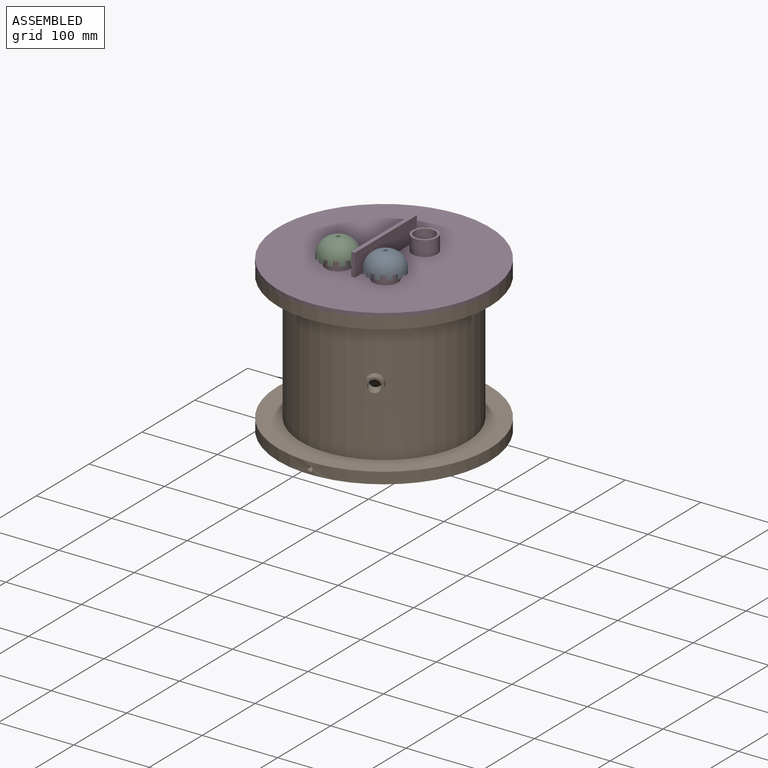
[diagram: assembled view]
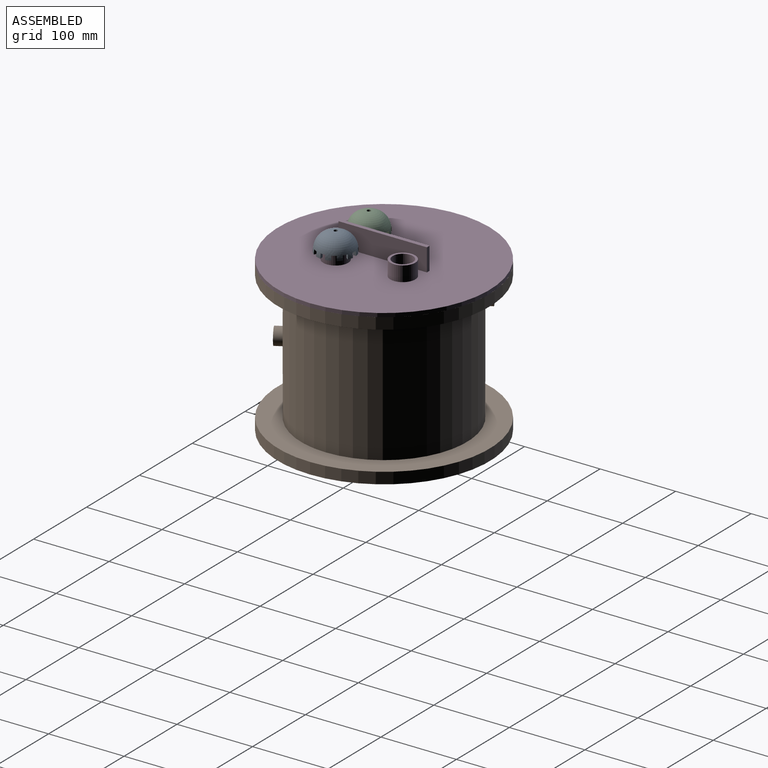
[diagram: assembled view, second angle]
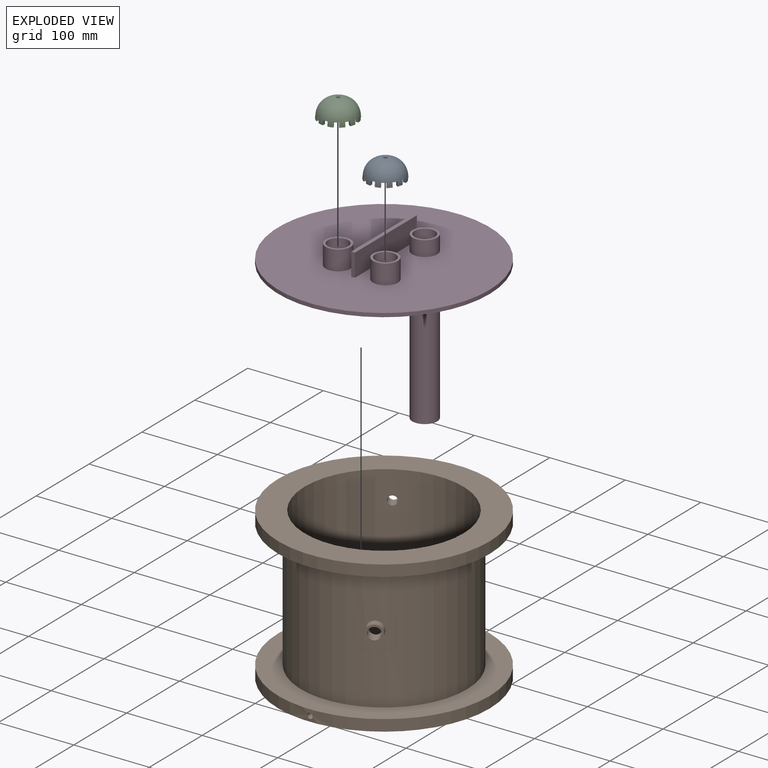
[diagram: exploded view]
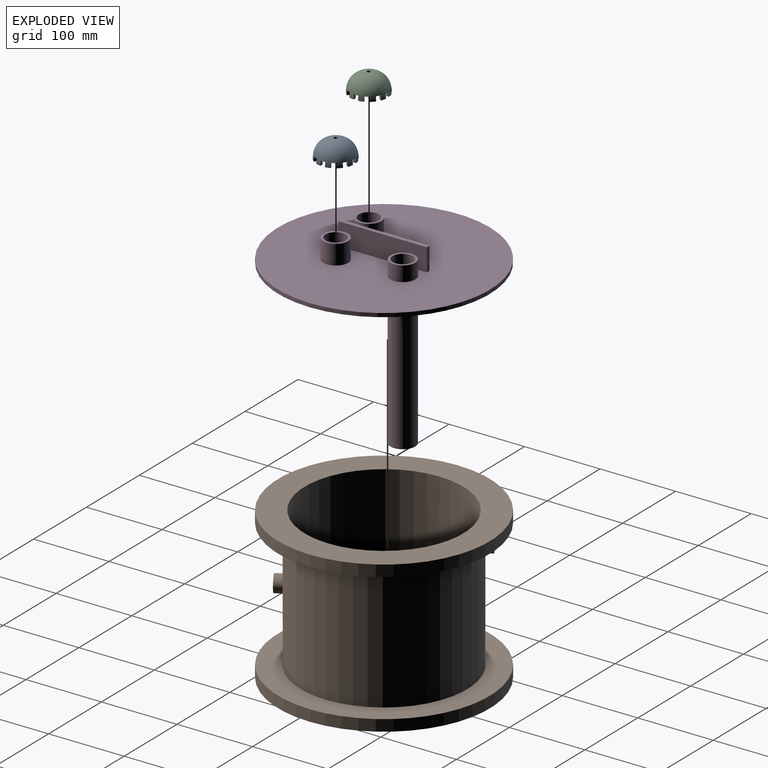
[diagram: exploded view, second angle]
ASSEMBLY  parts=4 mates=3
PART A: 51 faces, bbox 50x50x24.9 mm
  f0: revolved ~42x42mm, area 2457.2mm2, adj f2,f3,f4,f5,f6,f7,f8,f9
  f1: revolved ~50x50mm, area 3641.9mm2, adj f2,f3,f4,f5,f6,f7,f8,f9
  f2: plane 6.82x5.29mm, normal (0,0,-1), area 24.1mm2, adj f0,f1,f44,f48
  f3: plane 7.03x6.98mm, normal (0,0,-1), area 24.1mm2, adj f0,f1,f41,f45
  f4: plane 6.8x5.35mm, normal (0,0,-1), area 24.1mm2, adj f0,f1,f38,f42
  f5: plane 6.82x5.29mm, normal (0,0,-1), area 24.1mm2, adj f0,f1,f14,f39
  f6: plane 7.03x6.98mm, normal (0,0,-1), area 24.1mm2, adj f0,f1,f32,f36
  f7: plane 6.8x5.35mm, normal (0,0,-1), area 24.1mm2, adj f0,f1,f33,f47
  f8: plane 6.82x5.29mm, normal (0,0,-1), area 24.1mm2, adj f0,f1,f30,f35
  f9: plane 6.8x5.35mm, normal (0,0,-1), area 24.1mm2, adj f0,f1,f27,f29
  f10: plane 7.03x6.98mm, normal (0,0,-1), area 24.1mm2, adj f0,f1,f24,f26
  f11: plane 6.82x5.29mm, normal (0,0,-1), area 24.1mm2, adj f0,f1,f21,f23
  f12: plane 6.8x5.35mm, normal (0,0,-1), area 24.1mm2, adj f0,f1,f18,f20
  f13: plane 7.03x6.98mm, normal (0,0,-1), area 24.1mm2, adj f0,f1,f15,f17
  f14: plane 6x4mm, normal (0.5,0.87,0), area 24.4mm2, adj f0,f1,f5,f16
  f15: plane 6x3.99mm, normal (-0.5,-0.87,0), area 24.3mm2, adj f0,f1,f13,f16
  f16: plane 7.27x6.53mm, normal (0,0,-1), area 24.5mm2, adj f0,f1,f14,f15
  f17: plane 6x4mm, normal (0.87,0.5,0), area 24.4mm2, adj f0,f1,f13,f19
  f18: plane 6x3.99mm, normal (-0.87,-0.5,0), area 24.3mm2, adj f0,f1,f12,f19
  f19: plane 7.23x6.58mm, normal (0,0,-1), area 24.5mm2, adj f0,f1,f17,f18
  f20: plane 6x4.62mm, normal (1,0,0), area 24.4mm2, adj f0,f1,f12,f22
  f21: plane 6x4.61mm, normal (-1,0,0), area 24.3mm2, adj f0,f1,f11,f22
  f22: plane 6x4.31mm, normal (0,0,-1), area 24.5mm2, adj f0,f1,f20,f21
  f23: plane 6x4mm, normal (0.87,-0.5,0), area 24.4mm2, adj f0,f1,f11,f25
  f24: plane 6x3.99mm, normal (-0.87,0.5,0), area 24.3mm2, adj f0,f1,f10,f25
  f25: plane 7.27x6.53mm, normal (0,0,-1), area 24.5mm2, adj f0,f1,f23,f24
  f26: plane 6x4mm, normal (0.5,-0.87,0), area 24.4mm2, adj f0,f1,f10,f28
  f27: plane 6x3.99mm, normal (-0.5,0.87,0), area 24.3mm2, adj f0,f1,f9,f28
  f28: plane 7.23x6.58mm, normal (0,0,-1), area 24.5mm2, adj f0,f1,f26,f27
  f29: plane 6x4.62mm, normal (0,-1,0), area 24.4mm2, adj f0,f1,f9,f31
  f30: plane 6x4.61mm, normal (0,1,0), area 24.3mm2, adj f0,f1,f8,f31
  f31: plane 6x4.31mm, normal (0,0,-1), area 24.5mm2, adj f0,f1,f29,f30
  f32: plane 6x4mm, normal (-0.87,-0.5,0), area 24.4mm2, adj f0,f1,f6,f34
  f33: plane 6x3.99mm, normal (0.87,0.5,0), area 24.3mm2, adj f0,f1,f7,f34
  f34: plane 7.23x6.58mm, normal (0,0,-1), area 24.5mm2, adj f0,f1,f32,f33
  f35: plane 6x4mm, normal (-0.5,-0.87,0), area 24.4mm2, adj f0,f1,f8,f37
  f36: plane 6x3.99mm, normal (0.5,0.87,0), area 24.3mm2, adj f0,f1,f6,f37
  f37: plane 7.27x6.53mm, normal (0,0,-1), area 24.5mm2, adj f0,f1,f35,f36
  f38: plane 6x4.62mm, normal (0,1,0), area 24.4mm2, adj f0,f1,f4,f40
  f39: plane 6x4.61mm, normal (0,-1,0), area 24.3mm2, adj f0,f1,f5,f40
  f40: plane 6x4.31mm, normal (0,0,-1), area 24.5mm2, adj f0,f1,f38,f39
  f41: plane 6x4mm, normal (-0.5,0.87,0), area 24.4mm2, adj f0,f1,f3,f43
  f42: plane 6x3.99mm, normal (0.5,-0.87,0), area 24.3mm2, adj f0,f1,f4,f43
  f43: plane 7.23x6.58mm, normal (0,0,-1), area 24.5mm2, adj f0,f1,f41,f42
  f44: plane 6x4mm, normal (-0.87,0.5,0), area 24.4mm2, adj f0,f1,f2,f46
  f45: plane 6x3.99mm, normal (0.87,-0.5,0), area 24.3mm2, adj f0,f1,f3,f46
  f46: plane 7.27x6.53mm, normal (0,0,-1), area 24.5mm2, adj f0,f1,f44,f45
  f47: plane 6x4.62mm, normal (-1,0,0), area 24.4mm2, adj f0,f1,f7,f49
  f48: plane 6x4.61mm, normal (1,0,0), area 24.3mm2, adj f0,f1,f2,f49
  f49: plane 6x4.31mm, normal (0,0,-1), area 24.5mm2, adj f0,f1,f47,f48
  f50: cylinder r=2.5mm len=5mm, axis (0,0,-1), area 63mm2, adj f0,f1
PART B: 18 faces, bbox 280x280x200 mm
  f0: cylinder r=105mm len=210mm, axis (0,0,-1), area 131075.1mm2, adj f2,f3,f8,f11,f12,f15
  f1: cylinder r=140mm len=280mm, axis (0,0,-1), area 13156.2mm2, adj f3,f4,f8
  f2: plane 280x280mm, normal (0,0,1), area 26939.2mm2, adj f0,f7
  f3: plane 280x280mm, normal (0,0,-1), area 26939.2mm2, adj f0,f1
  f4: plane 280x280mm, normal (0,0,1), area 23561.9mm2, adj f1,f5
  f5: cylinder r=110mm len=220mm, axis (0,0,-1), area 116000.6mm2, adj f4,f6,f10,f14,f16
  f6: plane 280x280mm, normal (0,0,-1), area 23561.9mm2, adj f5,f7
  f7: cylinder r=140mm len=280mm, axis (0,0,-1), area 13194.7mm2, adj f2,f6
  f8: cylinder r=3.5mm len=35mm, axis (0,1,0), area 769.7mm2, adj f0,f1
  f9: plane 27x20.07mm, normal (-0.67,0,0.74), area 226.2mm2, adj f10,f11
  f10: cylinder r=13.5mm len=40.75mm, axis (-0.67,0,0.74), area 1369.7mm2, adj f5,f9
  f11: cylinder r=10.5mm len=39.81mm, axis (-0.67,0,0.74), area 1543.2mm2, adj f0,f9
  f12: cylinder r=6mm len=19.14mm, axis (0.5,-0.87,0), area 568.7mm2, adj f0,f13
  f13: plane 18x15.59mm, normal (-0.5,0.87,0), area 141.4mm2, adj f12,f14
  f14: cylinder r=9mm len=20.77mm, axis (0.5,-0.87,0), area 575.9mm2, adj f5,f13
  f15: cylinder r=8mm len=21.51mm, axis (-0.5,0.87,0), area 761.6mm2, adj f0,f17
  f16: cylinder r=11mm len=24.33mm, axis (-0.5,0.87,0), area 710.2mm2, adj f5,f17
  f17: plane 22x19.05mm, normal (0.5,-0.87,0), area 179.1mm2, adj f15,f16
PART C: same geometry as A
PART D: 31 faces, bbox 280x280x230 mm
  f0: plane 33x10mm, normal (0,0,-1), area 312.3mm2, adj f22,f24,f29,f30
  f1: plane 33x10mm, normal (0,0,-1), area 312.3mm2, adj f21,f26,f27,f28
  f2: cylinder r=13.5mm len=55mm, axis (0,0,-1), area 4347mm2, adj f16,f25,f27,f28
  f3: cylinder r=13.5mm len=55mm, axis (0,0,-1), area 4347mm2, adj f18,f23,f29,f30
  f4: plane 280x280mm, normal (0,0,-1), area 59009.3mm2, adj f10,f19,f21,f22
  f5: plane 117x30mm, normal (1,0,0), area 3510mm2, adj f6,f8,f9,f11
  f6: plane 30x5mm, normal (0,1,0), area 150mm2, adj f5,f7,f9,f11
  f7: plane 117x30mm, normal (-1,0,0), area 3510mm2, adj f6,f8,f9,f11
  f8: plane 30x5mm, normal (0,-1,0), area 150mm2, adj f5,f7,f9,f11
  f9: plane 117x5mm, normal (0,0,1), area 585mm2, adj f5,f6,f7,f8
  f10: cylinder r=140mm len=280mm, axis (0,0,-1), area 4398.2mm2, adj f4,f11
  f11: plane 280x280mm, normal (0,0,1), area 58424.3mm2, adj f5,f6,f7,f8,f10,f12,f15,f17
  f12: cylinder r=16.5mm len=33mm, axis (0,0,-1), area 2073.5mm2, adj f11,f14
  f13: cylinder r=13.5mm len=220mm, axis (0,0,-1), area 18661.1mm2, adj f14,f20
  f14: plane 33x33mm, normal (0,0,1), area 282.7mm2, adj f12,f13
  f15: cylinder r=16.5mm len=33mm, axis (0,0,-1), area 2695.5mm2, adj f11,f16
  f16: plane 33x33mm, normal (0,0,1), area 282.7mm2, adj f2,f15
  f17: cylinder r=16.5mm len=33mm, axis (0,0,-1), area 2695.5mm2, adj f11,f18
  f18: plane 33x33mm, normal (0,0,1), area 282.7mm2, adj f3,f17
  f19: cylinder r=16.5mm len=195mm, axis (0,0,1), area 20216.1mm2, adj f4,f20
  f20: plane 33x33mm, normal (0,0,-1), area 282.7mm2, adj f13,f19
  f21: cylinder r=16.5mm len=33mm, axis (0,0,1), area 1937.2mm2, adj f1,f4,f27,f28
  f22: cylinder r=16.5mm len=33mm, axis (0,0,1), area 1937.2mm2, adj f0,f4,f29,f30
  f23: plane 27x15.15mm, normal (0,0,1), area 373.8mm2, adj f3,f24,f29,f30
  f24: cylinder r=2mm len=4mm, axis (0,0,-1), area 50.3mm2, adj f0,f23
  f25: plane 27x15.15mm, normal (0,0,1), area 373.8mm2, adj f2,f26,f27,f28
  f26: cylinder r=2mm len=4mm, axis (0,0,-1), area 50.3mm2, adj f1,f25
  f27: plane 31.45x17.88mm, normal (0,-0.84,-0.54), area 318.1mm2, adj f1,f2,f21,f25
  f28: plane 31.45x17.88mm, normal (0,0.84,-0.54), area 318.1mm2, adj f1,f2,f21,f25
  f29: plane 31.45x17.88mm, normal (0,-0.84,-0.54), area 318.1mm2, adj f0,f3,f22,f23
  f30: plane 31.45x17.88mm, normal (0,0.84,-0.54), area 318.1mm2, adj f0,f3,f22,f23
PLACE A rot(axis=(0,0,-1),180deg) t=(-582.6,481.21,-151.45)mm
PLACE B t=(-415.55,523.25,-365.74)mm
PLACE C rot(axis=(0,0,-1),180deg) t=(-645.24,481.21,-151.45)mm
PLACE D t=(-415.55,523.25,-165.74)mm
MATE fastened D.f10 <-> B.f0  axis (0,0,-1) through (-415.55,523.25,-165.74)mm
MATE slider C.f50 <-> D.f3  axis (0,0,1) through (-446.87,481.21,-134.74)mm
MATE slider A.f50 <-> D.f2  axis (0,0,1) through (-384.23,481.21,-134.74)mm
